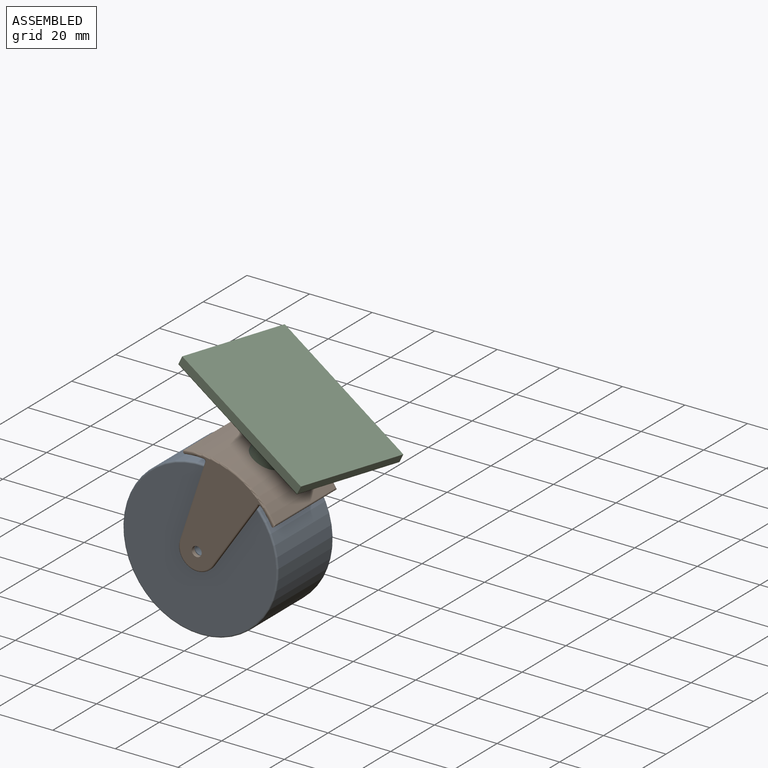
[diagram: assembled view]
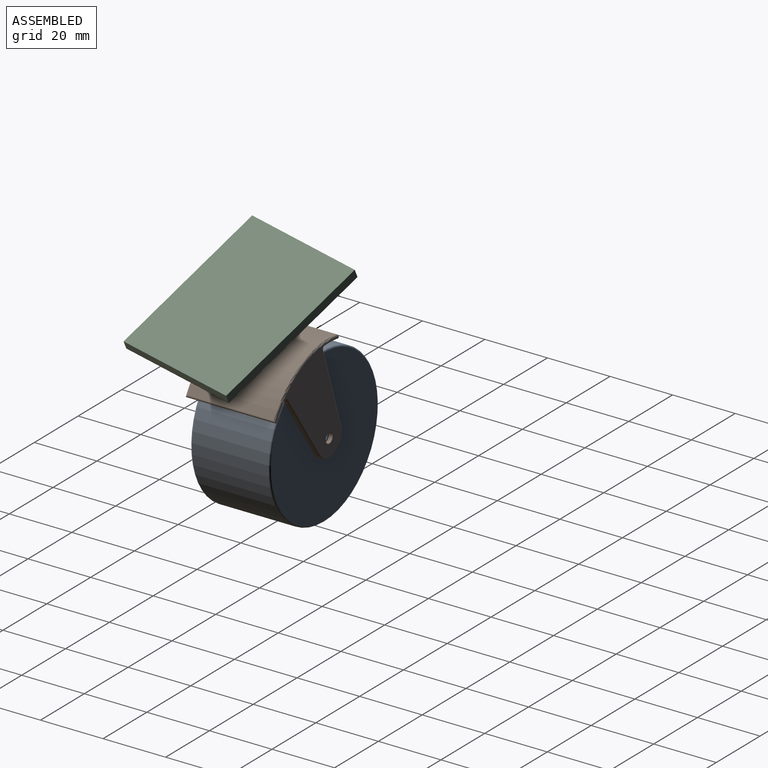
[diagram: assembled view, second angle]
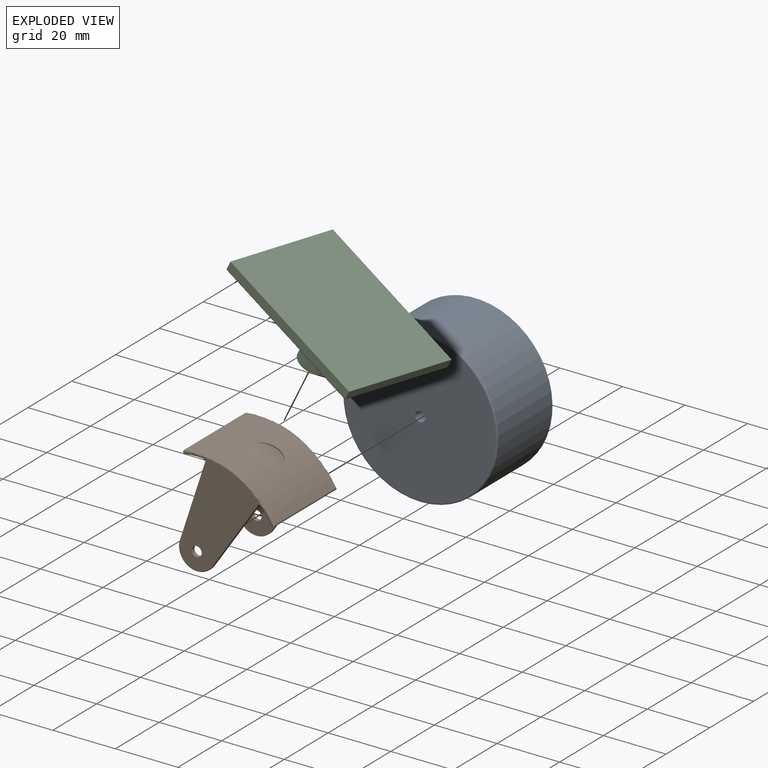
[diagram: exploded view]
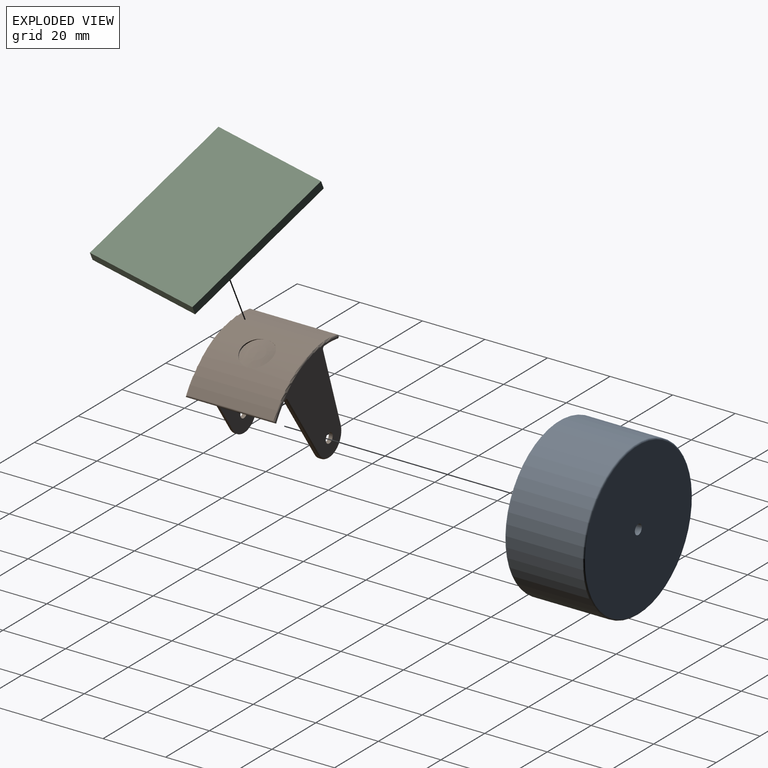
[diagram: exploded view, second angle]
ASSEMBLY  parts=3 mates=2
PART A: 6 faces, bbox 53.6x25.4x53.6 mm
  f0: cylinder r=24.77mm len=49.53mm, axis (0,1,0), area 3794.2mm2, adj f4,f5
  f1: cylinder r=1.59mm len=25.4mm, axis (0,1,0), area 253.4mm2, adj f2,f3
  f2: plane 48.51x48.51mm, normal (0,-1,0), area 1840.6mm2, adj f1,f5
  f3: plane 48.51x48.51mm, normal (0,1,0), area 1840.6mm2, adj f1,f4
  f4: torus R=24.26mm, axis (0,-1,0), area 123.2mm2, adj f0,f3
  f5: torus R=24.26mm, axis (0,-1,0), area 123.2mm2, adj f0,f2
PART B: 45 faces, bbox 35.5x28.6x37.3 mm
  f0: cylinder r=28.57mm len=31.93mm, axis (0,1,0), area 852.3mm2, adj f38,f39,f40,f41,f42,f44
  f1: plane 25.77x3.62mm, normal (0.99,0,-0.14), area 19.8mm2, adj f3,f15,f31,f36
  f2: plane 25.77x3.62mm, normal (-0.99,0,-0.14), area 19.8mm2, adj f3,f15,f30,f35
  f3: cylinder r=5.87mm len=11.63mm, axis (0,1,0), area 12.8mm2, adj f1,f2,f15,f37
  f4: cylinder r=1.59mm len=3.18mm, axis (0,1,0), area 12.7mm2, adj f11,f15
  f5: plane 33.43x32.2mm, normal (0,-1,0), area 447.1mm2, adj f9,f12,f13,f17,f18,f21,f22,f23
  f6: cylinder r=5.87mm len=11.63mm, axis (0,1,0), area 12.8mm2, adj f7,f10,f14,f17
  f7: plane 25.77x3.62mm, normal (0.99,0,-0.14), area 19.8mm2, adj f6,f14,f20,f21
  f8: cylinder r=27.3mm len=30.5mm, axis (0,1,0), area 839.2mm2, adj f16,f19,f20,f24,f25,f26,f27,f28
  f9: plane 28.58x0.21mm, normal (0.82,0,-0.57), area 7.3mm2, adj f5,f11,f25,f28,f32,f40
  f10: plane 25.77x3.62mm, normal (-0.99,0,-0.14), area 19.8mm2, adj f6,f14,f18,f19
  f11: plane 33.43x32.2mm, normal (0,1,0), area 447.1mm2, adj f4,f9,f13,f29,f32,f33,f34,f35
  f12: cylinder r=1.59mm len=3.18mm, axis (0,1,0), area 12.7mm2, adj f5,f14
  f13: plane 28.58x0.21mm, normal (-0.82,0,-0.57), area 7.3mm2, adj f5,f11,f24,f26,f29,f39
  f14: plane 32.67x18.93mm, normal (0,1,0), area 453.8mm2, adj f6,f7,f10,f12,f16,f19,f20
  f15: plane 32.67x18.93mm, normal (0,-1,0), area 453.8mm2, adj f1,f2,f3,f4,f27,f30,f31
  f16: torus R=26.8mm, axis (0,-1,0), area 15.9mm2, adj f8,f14,f19,f20
  f17: torus R=5.36mm, axis (0,-1,0), area 13mm2, adj f5,f6,f18,f21
  f18: cylinder r=0.51mm len=25.84mm, axis (-0.14,0,0.99), area 20.8mm2, adj f5,f10,f17,f22
  f19: cylinder r=0.51mm len=1.27mm, axis (0,1,0), area 0.8mm2, adj f8,f10,f14,f16,f22
  f20: cylinder r=0.51mm len=1.27mm, axis (0,1,0), area 0.8mm2, adj f7,f8,f14,f16,f23
  f21: cylinder r=0.51mm len=25.84mm, axis (-0.14,0,-0.99), area 20.8mm2, adj f5,f7,f17,f23
  f22: torus R=1.02mm, axis (0,-1,0), area 1mm2, adj f5,f18,f19,f24
  f23: torus R=1.02mm, axis (0,-1,0), area 1mm2, adj f5,f20,f21,f25
  f24: torus R=27.81mm, axis (0,-1,0), area 4.9mm2, adj f5,f8,f13,f22,f26
  f25: torus R=27.81mm, axis (0,-1,0), area 4.9mm2, adj f5,f8,f9,f23,f28
  f26: cylinder r=0.51mm len=28.58mm, axis (0,1,0), area 22.2mm2, adj f8,f13,f24,f29
  f27: torus R=26.8mm, axis (0,-1,0), area 15.9mm2, adj f8,f15,f30,f31
  f28: cylinder r=0.51mm len=28.58mm, axis (0,1,0), area 22.2mm2, adj f8,f9,f25,f32
  f29: torus R=27.81mm, axis (0,-1,0), area 4.9mm2, adj f8,f11,f13,f26,f33
  f30: cylinder r=0.51mm len=1.27mm, axis (0,1,0), area 0.8mm2, adj f2,f8,f15,f27,f33
  f31: cylinder r=0.51mm len=1.27mm, axis (0,1,0), area 0.8mm2, adj f1,f8,f15,f27,f34
  f32: torus R=27.81mm, axis (0,-1,0), area 4.9mm2, adj f8,f9,f11,f28,f34
  f33: torus R=1.02mm, axis (0,-1,0), area 1mm2, adj f11,f29,f30,f35
  f34: torus R=1.02mm, axis (0,-1,0), area 1mm2, adj f11,f31,f32,f36
  f35: cylinder r=0.51mm len=25.84mm, axis (0.14,0,-0.99), area 20.8mm2, adj f2,f11,f33,f37
  f36: cylinder r=0.51mm len=25.84mm, axis (0.14,0,0.99), area 20.8mm2, adj f1,f11,f34,f37
  f37: torus R=5.36mm, axis (0,-1,0), area 13mm2, adj f3,f11,f35,f36
  f38: torus R=28.07mm, axis (0,-1,0), area 27.4mm2, adj f0,f11,f39,f40
  f39: cylinder r=0.51mm len=28.58mm, axis (0,1,0), area 22.8mm2, adj f0,f5,f11,f13,f38,f41
  f40: cylinder r=0.51mm len=28.58mm, axis (0,1,0), area 22.8mm2, adj f0,f5,f9,f11,f38,f41
  f41: torus R=28.07mm, axis (0,-1,0), area 27.4mm2, adj f0,f5,f39,f40
  f42: cylinder r=5.08mm len=10.16mm, axis (0,0,1), area 3.6mm2, adj f0,f43
  f43: sphere r=28.57mm, area 81.7mm2, adj f42,f44
  f44: cylinder r=5.08mm len=10.16mm, axis (0,0,1), area 3.6mm2, adj f0,f43
PART C: 13 faces, bbox 38.1x50.8x19 mm
  f0: cylinder r=5.08mm len=15.31mm, axis (0,0,1), area 488.8mm2, adj f1,f12
  f1: sphere r=28.57mm, area 81.7mm2, adj f0
  f2: plane 49.78x37.08mm, normal (0,0,-1), area 1748.1mm2, adj f8,f9,f10,f11,f12
  f3: plane 50.8x2.67mm, normal (1,0,0), area 135.5mm2, adj f4,f6,f7,f11
  f4: plane 50.8x38.1mm, normal (0,0,1), area 1935.5mm2, adj f3,f5,f6,f7
  f5: plane 50.8x2.67mm, normal (-1,0,0), area 135.5mm2, adj f4,f6,f7,f8
  f6: plane 38.1x2.67mm, normal (0,-1,0), area 101.6mm2, adj f3,f4,f5,f9
  f7: plane 38.1x2.67mm, normal (0,1,0), area 101.6mm2, adj f3,f4,f5,f10
  f8: cylinder r=0.51mm len=50.8mm, axis (0,-1,0), area 40.2mm2, adj f2,f5,f9,f10
  f9: cylinder r=0.51mm len=38.1mm, axis (-1,0,0), area 30.1mm2, adj f2,f6,f8,f11
  f10: cylinder r=0.51mm len=38.1mm, axis (1,0,0), area 30.1mm2, adj f2,f7,f8,f11
  f11: cylinder r=0.51mm len=50.8mm, axis (0,1,0), area 40.2mm2, adj f2,f3,f9,f10
  f12: torus R=5.59mm, axis (0,0,1), area 26.4mm2, adj f0,f2
PLACE A at identity fixed
PLACE B rot(axis=(0,1,0),26.1deg) t=(0,0,0)mm
PLACE C rot(axis=(-0.22,0.18,-0.96),103.5deg) t=(0,0,0)mm
MATE revolute C.f0 <-> B.f42  axis (0.44,0,0.9) through (12.36,0,25.26)mm
MATE revolute B.f0 <-> A.f0  axis (0,1,0) through (0,0,0)mm
